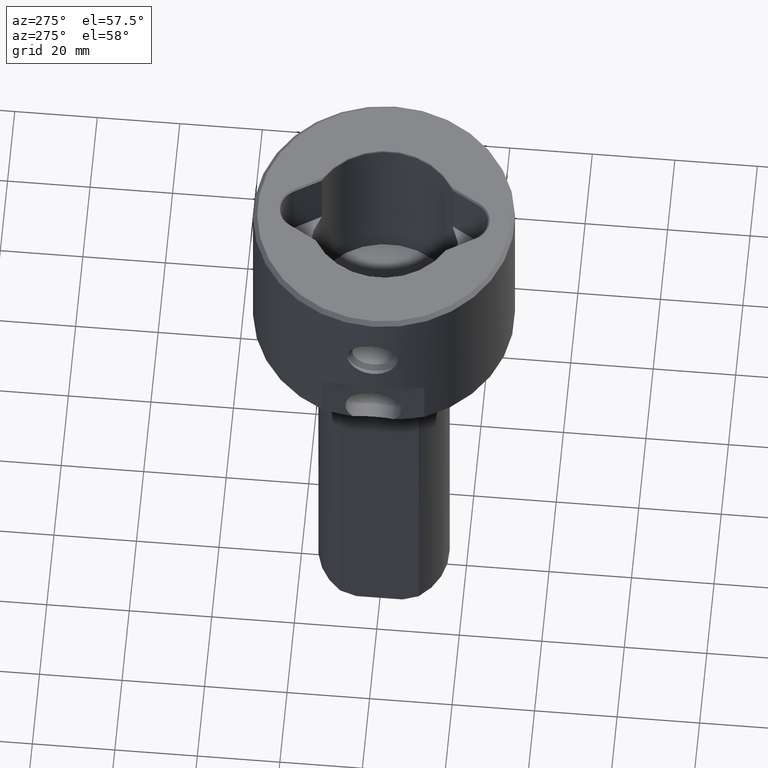
[diagram: clean part render]
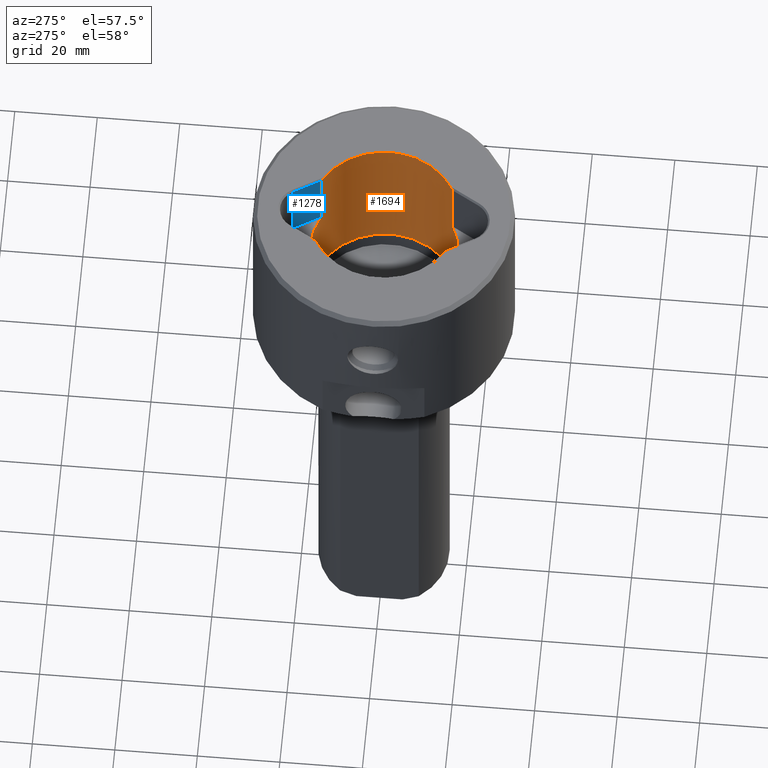
[diagram: same view with the hole feature highlighted: cylindrical wall and planar end face, labeled with their STEP entity ids]
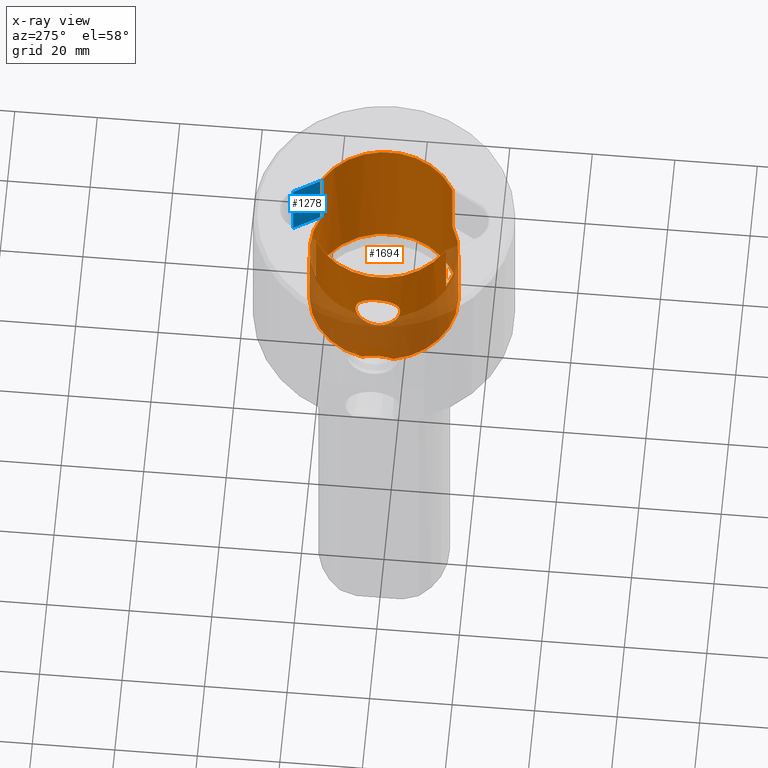
[diagram: x-ray of the same camera — body ghosted, the hole faces saturated]
A machine part, auxiliary view. The highlighted faces form one hole feature of diameter 36 mm: the cylindrical wall (entity #1694, orange) and its adjacent planar end face (entity #1278, blue) — they share a circular edge in the B-rep.
The next image is the same camera in x-ray (body ghosted, the hole faces saturated) — the bore reads through the body.
Wall:
#1 = EDGE_CURVE ( 'NONE', #38, #247, #1326, .T. ) ;
#32 = CARTESIAN_POINT ( 'NONE',  ( -17.33444449850987468, 4.849597146021736194, -13.58760967219940419 ) ) ;
#33 = CARTESIAN_POINT ( 'NONE',  ( -17.92217169488079520, -1.703057053352808436, -35.79328652054415727 ) ) ;
#34 = AXIS2_PLACEMENT_3D ( 'NONE', #1372, #1377, #1232 ) ;
#38 = VERTEX_POINT ( 'NONE', #439 ) ;
#42 = CARTESIAN_POINT ( 'NONE',  ( -17.98945931436183443, 0.7070667508926807843, -10.53615283552612247 ) ) ;
#52 = CARTESIAN_POINT ( 'NONE',  ( -17.47887003101556758, 4.304559398449096186, -12.66328018524360211 ) ) ;
#58 = CARTESIAN_POINT ( 'NONE',  ( -17.16629680184335882, -5.414633331170481512, -16.04687856848313743 ) ) ;
#61 = CARTESIAN_POINT ( 'NONE',  ( -17.60305317949132942, -3.759324242467012134, -37.00000000000000711 ) ) ;
#65 = CARTESIAN_POINT ( 'NONE',  ( -17.21206762638222187, -5.275392231855662750, -17.48398397906288793 ) ) ;
#69 = CARTESIAN_POINT ( 'NONE',  ( -17.47974789443492583, 4.301005571702951613, -19.44001572686741142 ) ) ;
#71 = EDGE_CURVE ( 'NONE', #1369, #1028, #706, .T. ) ;
#75 = CARTESIAN_POINT ( 'NONE',  ( -17.69561988426344357, -3.309476676868710054, -20.45771288999422666 ) ) ;
#80 = EDGE_LOOP ( 'NONE', ( #690, #528 ) ) ;
#81 = CARTESIAN_POINT ( 'NONE',  ( -17.19905880711430513, 5.309649343358159967, -17.12577978772318232 ) ) ;
#91 = EDGE_CURVE ( 'NONE', #1241, #1098, #1565, .T. ) ;
#105 = CARTESIAN_POINT ( 'NONE',  ( -17.37937906097737795, -4.690144412608011848, -13.25752381270908309 ) ) ;
#107 = CARTESIAN_POINT ( 'NONE',  ( -8.847642454325306716, 15.67543374201876816, -0.2500000000000483502 ) ) ;
#109 = CARTESIAN_POINT ( 'NONE',  ( -17.77055950704083287, -2.868641928640806693, -11.34197232911332520 ) ) ;
#113 = EDGE_CURVE ( 'NONE', #1098, #1369, #285, .T. ) ;
#141 = CARTESIAN_POINT ( 'NONE',  ( -8.847642454325306716, 15.67543374201876816, -0.2500000000000483502 ) ) ;
#156 = CARTESIAN_POINT ( 'NONE',  ( 8.847642454325278294, 15.67543374201878237, -0.2500000000000487943 ) ) ;
#157 = CARTESIAN_POINT ( 'NONE',  ( -17.80439140890812766, -2.650973005324353426, -36.20670298402330900 ) ) ;
#162 = VERTEX_POINT ( 'NONE', #1696 ) ;
#180 = FACE_OUTER_BOUND ( 'NONE', #80, .T. ) ;
#191 = CARTESIAN_POINT ( 'NONE',  ( -17.99999986416079167, -0.002211382250003467165, -21.59999958692054634 ) ) ;
#194 = CARTESIAN_POINT ( 'NONE',  ( -17.23905157090450757, 5.178329936928975918, -17.65526272629363902 ) ) ;
#201 = CARTESIAN_POINT ( 'NONE',  ( -17.20985962191030083, 5.274663257304567310, -17.30327748074478933 ) ) ;
#202 = VERTEX_POINT ( 'NONE', #883 ) ;
#204 = CARTESIAN_POINT ( 'NONE',  ( -17.60305317949132942, 3.759324242467013022, -37.00000000000000711 ) ) ;
#206 = EDGE_CURVE ( 'NONE', #202, #1204, #1202, .T. ) ;
#207 = DIRECTION ( 'NONE',  ( -0.0000000000000000000, -0.0000000000000000000, 1.000000000000000000 ) ) ;
#208 = ORIENTED_EDGE ( 'NONE', *, *, #91, .T. ) ;
#209 = CARTESIAN_POINT ( 'NONE',  ( -17.16632306384883933, 5.414550071365632711, -16.41177549497760424 ) ) ;
#214 = CARTESIAN_POINT ( 'NONE',  ( -17.84067216721243199, -2.413153824941026482, -21.02770395027074812 ) ) ;
#217 = CARTESIAN_POINT ( 'NONE',  ( 0.0000000000000000000, 0.0000000000000000000, -0.2500000000000487943 ) ) ;
#220 = CARTESIAN_POINT ( 'NONE',  ( -17.64283033049639116, -3.577175011701300811, -11.86825128641973492 ) ) ;
#227 = CARTESIAN_POINT ( 'NONE',  ( -17.22305040738715221, -5.231591477147992997, -14.61646883288685572 ) ) ;
#230 = ORIENTED_EDGE ( 'NONE', *, *, #1172, .T. ) ;
#247 = VERTEX_POINT ( 'NONE', #1721 ) ;
#249 = VERTEX_POINT ( 'NONE', #508 ) ;
#260 = CARTESIAN_POINT ( 'NONE',  ( 0.0000000000000000000, 0.0000000000000000000, -0.2500000000000487943 ) ) ;
#266 =( BOUNDED_CURVE ( )  B_SPLINE_CURVE ( 3, ( #1053, #651, #894, #107 ),
 .UNSPECIFIED., .F., .F. ) 
 B_SPLINE_CURVE_WITH_KNOTS ( ( 4, 4 ),
 ( 5.733670025123927871, 5.749840058275134780 ),
 .UNSPECIFIED. ) 
 CURVE ( )  GEOMETRIC_REPRESENTATION_ITEM ( )  RATIONAL_B_SPLINE_CURVE ( ( 1.000000000000000000, 0.9999782109543489117, 0.9999782109543489117, 1.000000000000000000 ) ) 
 REPRESENTATION_ITEM ( '' )  );
#267 = VECTOR ( 'NONE', #1361, 1000.000000000000000 ) ;
#272 = ORIENTED_EDGE ( 'NONE', *, *, #635, .T. ) ;
#285 =( BOUNDED_CURVE ( )  B_SPLINE_CURVE ( 3, ( #349, #1287, #470, #996 ),
 .UNSPECIFIED., .F., .F. ) 
 B_SPLINE_CURVE_WITH_KNOTS ( ( 4, 4 ),
 ( 5.733670025123926095, 5.749840058275133892 ),
 .UNSPECIFIED. ) 
 CURVE ( )  GEOMETRIC_REPRESENTATION_ITEM ( )  RATIONAL_B_SPLINE_CURVE ( ( 1.000000000000000000, 0.9999782109543489117, 0.9999782109543489117, 1.000000000000000000 ) ) 
 REPRESENTATION_ITEM ( '' )  );
#307 = AXIS2_PLACEMENT_3D ( 'NONE', #494, #1432, #339 ) ;
#310 = EDGE_LOOP ( 'NONE', ( #230 ) ) ;
#315 = AXIS2_PLACEMENT_3D ( 'NONE', #260, #394, #500 ) ;
#318 = AXIS2_PLACEMENT_3D ( 'NONE', #1632, #1499, #1089 ) ;
#321 = CARTESIAN_POINT ( 'NONE',  ( -17.16622542328070367, -5.414859626381428370, -15.68388732457633772 ) ) ;
#330 = CARTESIAN_POINT ( 'NONE',  ( -18.00008724370458069, 0.7090323551594571727, -21.60012928040771030 ) ) ;
#333 = CARTESIAN_POINT ( 'NONE',  ( -17.99995617438889539, -0.3578332509547337836, -21.59993474017696258 ) ) ;
#338 = CARTESIAN_POINT ( 'NONE',  ( -17.93128400984321402, -1.571322296138180530, -21.35804598344994787 ) ) ;
#339 = DIRECTION ( 'NONE',  ( 1.000000000000000000, 0.0000000000000000000, 0.0000000000000000000 ) ) ;
#345 = CARTESIAN_POINT ( 'NONE',  ( -17.47917136367497903, -4.303334574344775731, -19.43663767568693146 ) ) ;
#349 = CARTESIAN_POINT ( 'NONE',  ( 8.593024545601693376, -15.81644489633138662, -0.4000000000568444403 ) ) ;
#352 = CARTESIAN_POINT ( 'NONE',  ( -17.58834994565294707, -3.827524812362408380, -12.12432798165620440 ) ) ;
#357 = CARTESIAN_POINT ( 'NONE',  ( -17.24674715082999654, -5.152714468620291477, -14.35346335997000544 ) ) ;
#358 = CARTESIAN_POINT ( 'NONE',  ( 0.0000000000000000000, 0.0000000000000000000, -37.00000000000000711 ) ) ;
#384 = CIRCLE ( 'NONE', #307, 18.00000000000000000 ) ;
#394 = DIRECTION ( 'NONE',  ( 0.0000000000000000000, 0.0000000000000000000, 1.000000000000000000 ) ) ;
#412 = CARTESIAN_POINT ( 'NONE',  ( 8.847642454325288952, -15.67543374201877526, -0.2500000000000489053 ) ) ;
#419 = CARTESIAN_POINT ( 'NONE',  ( -17.78150625307939947, -2.799912055436811098, -36.29042169403708584 ) ) ;
#426 = CARTESIAN_POINT ( 'NONE',  ( -17.31300508371691294, 4.925587632132214289, -13.75280217146822004 ) ) ;
#432 = ORIENTED_EDGE ( 'NONE', *, *, #910, .T. ) ;
#437 = CARTESIAN_POINT ( 'NONE',  ( -18.00000000000000000, 0.3556291838948769102, -10.50013608482123040 ) ) ;
#439 = CARTESIAN_POINT ( 'NONE',  ( -8.593024545601714692, -15.81644489633136885, -16.60000000005684484 ) ) ;
#441 = CARTESIAN_POINT ( 'NONE',  ( -17.80190843968010483, 2.746618726658378584, -11.21633630150308569 ) ) ;
#448 = CARTESIAN_POINT ( 'NONE',  ( -17.42880577385396279, 4.498525235816154044, -12.96221788558966281 ) ) ;
#454 = CARTESIAN_POINT ( 'NONE',  ( -17.33478329553541641, -4.848386105445475103, -18.51072659874246895 ) ) ;
#455 = CARTESIAN_POINT ( 'NONE',  ( -17.95071010941065381, -1.373477697796763097, -35.69868259844840708 ) ) ;
#457 = CARTESIAN_POINT ( 'NONE',  ( -17.96902667239213613, -1.055500093254363003, -21.49239980530114380 ) ) ;
#458 = CARTESIAN_POINT ( 'NONE',  ( -17.87993864142112344, 2.075522627921872587, -21.17101512472919822 ) ) ;
#461 = CARTESIAN_POINT ( 'NONE',  ( -17.86759765141595580, -2.185203552087382040, -35.98168217810304270 ) ) ;
#466 = CARTESIAN_POINT ( 'NONE',  ( -17.16629657483088778, 5.414634050880006377, -16.04875306761608655 ) ) ;
#470 = CARTESIAN_POINT ( 'NONE',  ( 8.763150772731373550, -15.72312315217550349, -0.2993272375904807991 ) ) ;
#472 = CARTESIAN_POINT ( 'NONE',  ( -17.32406215473042366, -4.886396469693902844, -18.42800409082359891 ) ) ;
#478 = CARTESIAN_POINT ( 'NONE',  ( -17.74578048550582920, -3.014510733144005084, -11.44153248153536850 ) ) ;
#492 = CARTESIAN_POINT ( 'NONE',  ( -17.69622244243582543, -3.306248342150401420, -11.64065278637945333 ) ) ;
#494 = CARTESIAN_POINT ( 'NONE',  ( 0.0000000000000000000, 0.0000000000000000000, -16.60000000005684484 ) ) ;
#498 = CARTESIAN_POINT ( 'NONE',  ( -17.26431201936370741, -5.093479213470270217, -14.17889620802654704 ) ) ;
#500 = DIRECTION ( 'NONE',  ( 1.000000000000000000, 0.0000000000000000000, 0.0000000000000000000 ) ) ;
#508 = CARTESIAN_POINT ( 'NONE',  ( -17.60305317949132942, 3.759324242467013022, -37.00000000000000711 ) ) ;
#511 = EDGE_LOOP ( 'NONE', ( #432, #272, #1433, #1509, #208, #583, #840, #1436, #1161, #1610, #801, #1159 ) ) ;
#512 = EDGE_CURVE ( 'NONE', #553, #249, #824, .T. ) ;
#528 = ORIENTED_EDGE ( 'NONE', *, *, #512, .T. ) ;
#536 = B_SPLINE_CURVE_WITH_KNOTS ( 'NONE', 3,
 ( #1380, #437, #42, #1242, #958, #563, #569, #1513, #695, #1518, #441, #699, #1659, #838, #52, #448, #574, #1525, #1637, #811, #32, #1228, #426, #1359, #1683, #1535, #865, #466, #209, #1673, #81, #201, #716, #194, #599, #858, #1134, #576, #993, #1252, #974, #850, #1530, #69, #1396, #1402, #720, #999, #1679, #989, #1270, #458, #595, #330, #191, #333, #1662, #457, #1127, #1257, #338, #1411, #710, #1550, #214, #729, #1264, #75, #1141, #1665, #1399, #345, #1116, #589, #1388, #1543, #1275, #454, #472, #705, #581, #846, #65, #842, #58, #321, #983, #1123, #1017, #227, #893, #357, #744, #498, #1699, #1570, #1438, #608, #105, #622, #757, #1560, #352, #220, #492, #478, #109, #736, #1150, #1581, #1007, #764, #614, #1717, #1299 ),
 .UNSPECIFIED., .T., .F.,
 ( 4, 3, 3, 3, 3, 3, 3, 3, 3, 3, 3, 3, 3, 3, 3, 3, 3, 3, 3, 3, 3, 3, 3, 3, 3, 3, 3, 3, 3, 3, 3, 3, 3, 3, 3, 3, 3, 3, 4 ),
 ( 0.0000000000000000000, 0.02631578947368420907, 0.05263157894736841813, 0.07894736842105262720, 0.1052631578947368363, 0.1315789473684210453, 0.1578947368421052544, 0.1842105263157894635, 0.2105263157894736725, 0.2368421052631578816, 0.2631578947368420907, 0.2894736842105263275, 0.3157894736842105088, 0.3421052631578947456, 0.3684210526315789269, 0.3947368421052631637, 0.4210526315789473450, 0.4473684210526315819, 0.4736842105263157632, 0.5000000000000000000, 0.5263157894736841813, 0.5526315789473684736, 0.5789473684210526550, 0.6052631578947368363, 0.6315789473684210176, 0.6578947368421053099, 0.6842105263157894912, 0.7105263157894736725, 0.7368421052631578538, 0.7631578947368421462, 0.7894736842105263275, 0.8157894736842105088, 0.8421052631578946901, 0.8684210526315789824, 0.8947368421052631637, 0.9210526315789473450, 0.9473684210526315264, 0.9736842105263158187, 1.000000000000000000 ),
 .UNSPECIFIED. ) ;
#550 = CARTESIAN_POINT ( 'NONE',  ( -17.99995068983495017, -0.3481907699299508496, -35.53755956262458682 ) ) ;
#553 = VERTEX_POINT ( 'NONE', #61 ) ;
#563 = CARTESIAN_POINT ( 'NONE',  ( -17.94635482207223731, 1.399204737499998963, -10.68891772316141875 ) ) ;
#569 = CARTESIAN_POINT ( 'NONE',  ( -17.93139204589926550, 1.570088945334184638, -10.74280671461409042 ) ) ;
#574 = CARTESIAN_POINT ( 'NONE',  ( -17.40377364527315862, 4.595508154499682085, -13.11168673576269050 ) ) ;
#576 = CARTESIAN_POINT ( 'NONE',  ( -17.27356385820863238, 5.062115865894688760, -18.00499036647170570 ) ) ;
#581 = CARTESIAN_POINT ( 'NONE',  ( -17.30310831216911538, -4.960218887504337815, -18.26240026437089625 ) ) ;
#583 = ORIENTED_EDGE ( 'NONE', *, *, #113, .T. ) ;
#589 = CARTESIAN_POINT ( 'NONE',  ( -17.40410430007927189, -4.594255491026685512, -18.98742664093746768 ) ) ;
#591 = CARTESIAN_POINT ( 'NONE',  ( -17.60305317949132942, -3.759324242467012134, -37.00000000000000711 ) ) ;
#595 = CARTESIAN_POINT ( 'NONE',  ( -17.95795583747988644, 1.403430375233156724, -21.45713453109459934 ) ) ;
#597 = DIRECTION ( 'NONE',  ( -0.0000000000000000000, -0.0000000000000000000, 1.000000000000000000 ) ) ;
#599 = CARTESIAN_POINT ( 'NONE',  ( -17.24694866929598547, 5.152039899776191589, -17.74300819263965323 ) ) ;
#608 = CARTESIAN_POINT ( 'NONE',  ( -17.33314558854568688, -4.856214130550744912, -13.57740885259132391 ) ) ;
#614 = CARTESIAN_POINT ( 'NONE',  ( -17.95787453125354460, -1.404561119891114762, -10.64292990348563706 ) ) ;
#622 = CARTESIAN_POINT ( 'NONE',  ( -17.42950173482630305, -4.495827985553592754, -12.95854510546628013 ) ) ;
#635 = EDGE_CURVE ( 'NONE', #1414, #247, #1341, .T. ) ;
#651 = CARTESIAN_POINT ( 'NONE',  ( -8.678276287156156954, 15.77012789446816399, -0.3493283270854335432 ) ) ;
#679 = CARTESIAN_POINT ( 'NONE',  ( -17.95147164692240338, 1.363851028667707466, -35.69615692656522299 ) ) ;
#690 = ORIENTED_EDGE ( 'NONE', *, *, #723, .T. ) ;
#695 = CARTESIAN_POINT ( 'NONE',  ( -17.89895385736730304, 1.911986393678057228, -10.86014611343331815 ) ) ;
#699 = CARTESIAN_POINT ( 'NONE',  ( -17.69685802120729434, 3.329435415970922296, -11.61428344208668584 ) ) ;
#705 = CARTESIAN_POINT ( 'NONE',  ( -17.31334101392543445, -4.924406833942331474, -18.34528158290472888 ) ) ;
#706 = CIRCLE ( 'NONE', #1515, 18.00000000000000000 ) ;
#710 = CARTESIAN_POINT ( 'NONE',  ( -17.89889519390602146, -1.912530922040713843, -21.24113233622126984 ) ) ;
#714 = CARTESIAN_POINT ( 'NONE',  ( -17.99015156974784446, 0.6854709447934945743, -35.56902005296069547 ) ) ;
#715 = CARTESIAN_POINT ( 'NONE',  ( -8.847642454325315597, -15.67543374201876105, -0.2500000000000496825 ) ) ;
#716 = CARTESIAN_POINT ( 'NONE',  ( -17.22325737412154467, 5.230910011234544577, -17.47977179360161060 ) ) ;
#720 = CARTESIAN_POINT ( 'NONE',  ( -17.64277977288003640, 3.577402560891882910, -20.23193519118693828 ) ) ;
#723 = EDGE_CURVE ( 'NONE', #249, #553, #1109, .T. ) ;
#729 = CARTESIAN_POINT ( 'NONE',  ( -17.79485885170676340, -2.725912216288564949, -20.85679150196197185 ) ) ;
#736 = CARTESIAN_POINT ( 'NONE',  ( -17.79437340770851961, -2.717572966785108957, -11.24953172549032665 ) ) ;
#739 = EDGE_CURVE ( 'NONE', #1241, #38, #384, .T. ) ;
#741 = CARTESIAN_POINT ( 'NONE',  ( 8.593024545601691599, 15.81644489633137241, -0.4000000000568514347 ) ) ;
#744 = CARTESIAN_POINT ( 'NONE',  ( -17.25524600717043455, -5.124208398123087704, -14.26605147899809545 ) ) ;
#751 = DIRECTION ( 'NONE',  ( 1.000000000000000000, 0.0000000000000000000, 0.0000000000000000000 ) ) ;
#757 = CARTESIAN_POINT ( 'NONE',  ( -17.47962440867523171, -4.301511558499172772, -12.65956639822347718 ) ) ;
#764 = CARTESIAN_POINT ( 'NONE',  ( -17.87978627913467733, -2.076834758103604628, -10.92960615259167412 ) ) ;
#801 = ORIENTED_EDGE ( 'NONE', *, *, #206, .T. ) ;
#811 = CARTESIAN_POINT ( 'NONE',  ( -17.34551927459956033, 4.809866024490546010, -13.50632372665631209 ) ) ;
#813 = CARTESIAN_POINT ( 'NONE',  ( -17.98964092911268864, -0.6980355721858133577, -35.57067662379813555 ) ) ;
#824 = B_SPLINE_CURVE_WITH_KNOTS ( 'NONE', 3,
 ( #591, #1681, #991, #419, #157, #1267, #461, #33, #455, #813, #550, #1357, #714, #679, #1400, #1085, #1360, #1676, #1498, #204 ),
 .UNSPECIFIED., .F., .F.,
 ( 4, 2, 2, 2, 2, 2, 2, 2, 2, 4 ),
 ( 4.336808689942017736E-19, 0.001032245722602895700, 0.001548368583904342682, 0.002064491445205790098, 0.003096737167808692303, 0.004128982890411594942, 0.005161228613014498881, 0.006193474335617401086, 0.007225720058220303291, 0.008257965780823205496 ),
 .UNSPECIFIED. ) ;
#838 = CARTESIAN_POINT ( 'NONE',  ( -17.53283097734987450, 4.082379076305056920, -12.38530735035858577 ) ) ;
#840 = ORIENTED_EDGE ( 'NONE', *, *, #71, .T. ) ;
#842 = CARTESIAN_POINT ( 'NONE',  ( -17.16643955896867624, -5.414180740748588683, -16.77286105629672974 ) ) ;
#843 = CARTESIAN_POINT ( 'NONE',  ( -18.00000000000000000, 2.204364238465235033E-15, -10.49999995021656041 ) ) ;
#846 = CARTESIAN_POINT ( 'NONE',  ( -17.29299268041501136, -4.995238147987818955, -18.17590956600333740 ) ) ;
#850 = CARTESIAN_POINT ( 'NONE',  ( -17.37956024725014004, 4.689469158980028141, -18.84100969267689507 ) ) ;
#858 = CARTESIAN_POINT ( 'NONE',  ( -17.25544361673636118, 5.123542816546633460, -17.83050281394446657 ) ) ;
#862 = DIRECTION ( 'NONE',  ( 0.0000000000000000000, 0.0000000000000000000, 1.000000000000000000 ) ) ;
#865 = CARTESIAN_POINT ( 'NONE',  ( -17.16624359679498824, 5.414802009908753710, -15.32270821289304408 ) ) ;
#871 = CARTESIAN_POINT ( 'NONE',  ( 8.593024545601693376, -15.81644489633138662, -16.60000000005684484 ) ) ;
#883 = CARTESIAN_POINT ( 'NONE',  ( -8.593024545601718245, 15.81644489633135819, -16.60000000005684484 ) ) ;
#886 = CARTESIAN_POINT ( 'NONE',  ( 8.593024545601693376, -15.81644489633138662, -16.60000000005684484 ) ) ;
#893 = CARTESIAN_POINT ( 'NONE',  ( -17.23884823634904961, -5.179006804796191688, -14.44113185094228768 ) ) ;
#894 = CARTESIAN_POINT ( 'NONE',  ( -8.763150772731389537, 15.72312315217549283, -0.2993272375904793559 ) ) ;
#910 = EDGE_CURVE ( 'NONE', #1575, #1414, #1516, .T. ) ;
#940 = EDGE_CURVE ( 'NONE', #1204, #1575, #266, .T. ) ;
#952 = CARTESIAN_POINT ( 'NONE',  ( 8.593024545601693376, -15.81644489633138662, -0.4000000000568444403 ) ) ;
#958 = CARTESIAN_POINT ( 'NONE',  ( -17.95896603802782465, 1.227064097057561920, -10.64399888573380437 ) ) ;
#961 = FACE_BOUND ( 'NONE', #310, .T. ) ;
#974 = CARTESIAN_POINT ( 'NONE',  ( -17.33333456712267306, 4.855542281510373925, -18.52041391737796516 ) ) ;
#983 = CARTESIAN_POINT ( 'NONE',  ( -17.17729603003632732, -5.380134665842327024, -15.32500184067542826 ) ) ;
#989 = CARTESIAN_POINT ( 'NONE',  ( -17.79536237049869385, 2.722639937976988112, -20.85806089284125164 ) ) ;
#991 = CARTESIAN_POINT ( 'NONE',  ( -17.70959548840644615, -3.233591845447212787, -36.56099884395975153 ) ) ;
#993 = CARTESIAN_POINT ( 'NONE',  ( -17.28334364775323806, 5.028651010224002071, -18.09330325049970156 ) ) ;
#996 = CARTESIAN_POINT ( 'NONE',  ( 8.847642454325288952, -15.67543374201877526, -0.2500000000000489053 ) ) ;
#998 =( BOUNDED_CURVE ( )  B_SPLINE_CURVE ( 3, ( #1288, #1398, #1005, #741 ),
 .UNSPECIFIED., .F., .F. ) 
 B_SPLINE_CURVE_WITH_KNOTS ( ( 4, 4 ),
 ( 0.5333452489044533396, 0.5495152820556601370 ),
 .UNSPECIFIED. ) 
 CURVE ( )  GEOMETRIC_REPRESENTATION_ITEM ( )  RATIONAL_B_SPLINE_CURVE ( ( 1.000000000000000000, 0.9999782109543489117, 0.9999782109543489117, 1.000000000000000000 ) ) 
 REPRESENTATION_ITEM ( '' )  );
#999 = CARTESIAN_POINT ( 'NONE',  ( -17.69617416282950373, 3.306525385965418451, -20.45963701341381480 ) ) ;
#1002 = CYLINDRICAL_SURFACE ( 'NONE', #318, 18.00000000000000000 ) ;
#1005 = CARTESIAN_POINT ( 'NONE',  ( 8.678276287156142743, 15.77012789446817109, -0.3493283270854283251 ) ) ;
#1007 = CARTESIAN_POINT ( 'NONE',  ( -17.86026421610496229, -2.244903167656727483, -11.00127521486818161 ) ) ;
#1011 = CARTESIAN_POINT ( 'NONE',  ( -8.678276287156165836, -15.77012789446816399, -0.3493283270854354861 ) ) ;
#1017 = CARTESIAN_POINT ( 'NONE',  ( -17.20965742494444939, -5.275322577585106920, -14.79283225483289677 ) ) ;
#1024 = CIRCLE ( 'NONE', #34, 18.00000000000000000 ) ;
#1028 = VERTEX_POINT ( 'NONE', #156 ) ;
#1048 = AXIS2_PLACEMENT_3D ( 'NONE', #358, #1293, #751 ) ;
#1053 = CARTESIAN_POINT ( 'NONE',  ( -8.593024545601718245, 15.81644489633135819, -0.4000000000568479375 ) ) ;
#1070 = VECTOR ( 'NONE', #1236, 1000.000000000000000 ) ;
#1085 = CARTESIAN_POINT ( 'NONE',  ( -17.85022776244381859, 2.339380573720948320, -36.04160632180709456 ) ) ;
#1089 = DIRECTION ( 'NONE',  ( 1.000000000000000000, 0.0000000000000000000, 0.0000000000000000000 ) ) ;
#1098 = VERTEX_POINT ( 'NONE', #952 ) ;
#1100 = CARTESIAN_POINT ( 'NONE',  ( -8.593024545601718245, 15.81644489633135819, -0.4000000000568479375 ) ) ;
#1109 = CIRCLE ( 'NONE', #1048, 18.00000000000000000 ) ;
#1116 = CARTESIAN_POINT ( 'NONE',  ( -17.42912665461117427, -4.497281852132715585, -19.13716365252062346 ) ) ;
#1123 = CARTESIAN_POINT ( 'NONE',  ( -17.19887029330840988, -5.310259940337513918, -14.97022211678040726 ) ) ;
#1127 = CARTESIAN_POINT ( 'NONE',  ( -17.95885357221366263, -1.228688811679140569, -21.45656563479980150 ) ) ;
#1134 = CARTESIAN_POINT ( 'NONE',  ( -17.26450373747249500, 5.092829341220661554, -17.91774659020808613 ) ) ;
#1141 = CARTESIAN_POINT ( 'NONE',  ( -17.64236292114188842, -3.579517179887366396, -20.23033971682193766 ) ) ;
#1142 = DIRECTION ( 'NONE',  ( 1.000000000000000000, 0.0000000000000000000, 0.0000000000000000000 ) ) ;
#1147 = EDGE_CURVE ( 'NONE', #202, #1542, #1024, .T. ) ;
#1150 = CARTESIAN_POINT ( 'NONE',  ( -17.81683957297381227, -2.561294132057910122, -11.16421067066637818 ) ) ;
#1154 = CARTESIAN_POINT ( 'NONE',  ( -8.763150772731405524, -15.72312315217548218, -0.2993272375904806881 ) ) ;
#1159 = ORIENTED_EDGE ( 'NONE', *, *, #940, .T. ) ;
#1161 = ORIENTED_EDGE ( 'NONE', *, *, #1624, .F. ) ;
#1172 = EDGE_CURVE ( 'NONE', #1453, #1453, #536, .T. ) ;
#1202 = LINE ( 'NONE', #1701, #1218 ) ;
#1204 = VERTEX_POINT ( 'NONE', #1100 ) ;
#1218 = VECTOR ( 'NONE', #207, 1000.000000000000000 ) ;
#1228 = CARTESIAN_POINT ( 'NONE',  ( -17.32372479111339203, 4.887592389076974797, -13.67020592183381211 ) ) ;
#1232 = DIRECTION ( 'NONE',  ( 1.000000000000000000, -1.776356839400250465E-15, 0.0000000000000000000 ) ) ;
#1236 = DIRECTION ( 'NONE',  ( -0.0000000000000000000, -0.0000000000000000000, 1.000000000000000000 ) ) ;
#1241 = VERTEX_POINT ( 'NONE', #886 ) ;
#1242 = CARTESIAN_POINT ( 'NONE',  ( -17.96913046347249221, 1.053731648335934912, -10.60805020233124196 ) ) ;
#1252 = CARTESIAN_POINT ( 'NONE',  ( -17.29334183162712435, 4.994029264481277153, -18.17872538387535641 ) ) ;
#1257 = CARTESIAN_POINT ( 'NONE',  ( -17.94623997763364898, -1.400650940712579562, -21.41178102751606716 ) ) ;
#1264 = CARTESIAN_POINT ( 'NONE',  ( -17.74523936798510348, -3.017694446578637280, -20.65725219597809925 ) ) ;
#1267 = CARTESIAN_POINT ( 'NONE',  ( -17.84739193359810017, -2.344058976454685084, -36.05248565366802893 ) ) ;
#1270 = CARTESIAN_POINT ( 'NONE',  ( -17.84093004339174016, 2.411568754266230297, -21.02795542154649766 ) ) ;
#1275 = CARTESIAN_POINT ( 'NONE',  ( -17.34585835498481288, -4.808643124731013074, -18.59214010630679681 ) ) ;
#1287 = CARTESIAN_POINT ( 'NONE',  ( 8.678276287156130309, -15.77012789446817820, -0.3493283270854405931 ) ) ;
#1288 = CARTESIAN_POINT ( 'NONE',  ( 8.847642454325278294, 15.67543374201878237, -0.2500000000000487943 ) ) ;
#1293 = DIRECTION ( 'NONE',  ( -0.0000000000000000000, -0.0000000000000000000, -1.000000000000000000 ) ) ;
#1299 = CARTESIAN_POINT ( 'NONE',  ( -18.00000000000000000, 2.204364238465235033E-15, -10.49999995021656041 ) ) ;
#1326 = LINE ( 'NONE', #1528, #1070 ) ;
#1341 =( BOUNDED_CURVE ( )  B_SPLINE_CURVE ( 3, ( #1415, #1154, #1011, #1557 ),
 .UNSPECIFIED., .F., .T. ) 
 B_SPLINE_CURVE_WITH_KNOTS ( ( 4, 4 ),
 ( 0.5333452489044496758, 0.5495152820556575834 ),
 .UNSPECIFIED. ) 
 CURVE ( )  GEOMETRIC_REPRESENTATION_ITEM ( )  RATIONAL_B_SPLINE_CURVE ( ( 1.000000000000000000, 0.9999782109543489117, 0.9999782109543489117, 1.000000000000000000 ) ) 
 REPRESENTATION_ITEM ( '' )  );
#1357 = CARTESIAN_POINT ( 'NONE',  ( -18.00004894649460851, 0.3430737130011207725, -35.53724161417546412 ) ) ;
#1359 = CARTESIAN_POINT ( 'NONE',  ( -17.30277622210832433, 4.961377068239486654, -13.83554903340061060 ) ) ;
#1360 = CARTESIAN_POINT ( 'NONE',  ( -17.80702508212396751, 2.645325197156155550, -36.19455290003862302 ) ) ;
#1361 = DIRECTION ( 'NONE',  ( -0.0000000000000000000, -0.0000000000000000000, 1.000000000000000000 ) ) ;
#1369 = VERTEX_POINT ( 'NONE', #412 ) ;
#1372 = CARTESIAN_POINT ( 'NONE',  ( 0.0000000000000000000, 0.0000000000000000000, -16.60000000005684484 ) ) ;
#1377 = DIRECTION ( 'NONE',  ( -0.0000000000000000000, -0.0000000000000000000, -1.000000000000000000 ) ) ;
#1380 = CARTESIAN_POINT ( 'NONE',  ( -18.00000000000000000, 2.204364238465235033E-15, -10.49999995021656041 ) ) ;
#1386 = LINE ( 'NONE', #1494, #267 ) ;
#1388 = CARTESIAN_POINT ( 'NONE',  ( -17.38003936146367678, -4.684189885439169032, -18.83245362793611477 ) ) ;
#1396 = CARTESIAN_POINT ( 'NONE',  ( -17.53395048439865889, 4.077507523926422905, -19.71955178170685841 ) ) ;
#1398 = CARTESIAN_POINT ( 'NONE',  ( 8.763150772731371774, 15.72312315217549994, -0.2993272375904776350 ) ) ;
#1399 = CARTESIAN_POINT ( 'NONE',  ( -17.53309746227581201, -4.081226048717265797, -19.71516769318045803 ) ) ;
#1400 = CARTESIAN_POINT ( 'NONE',  ( -17.92237478342964607, 1.700533669795517788, -35.79262463074479683 ) ) ;
#1402 = CARTESIAN_POINT ( 'NONE',  ( -17.58836512863934587, 3.827455042409153130, -19.97574348644689834 ) ) ;
#1411 = CARTESIAN_POINT ( 'NONE',  ( -17.91632804205277907, -1.741993651563781720, -21.30431093938383214 ) ) ;
#1414 = VERTEX_POINT ( 'NONE', #715 ) ;
#1415 = CARTESIAN_POINT ( 'NONE',  ( -8.847642454325315597, -15.67543374201876105, -0.2500000000000496825 ) ) ;
#1432 = DIRECTION ( 'NONE',  ( -0.0000000000000000000, -0.0000000000000000000, -1.000000000000000000 ) ) ;
#1433 = ORIENTED_EDGE ( 'NONE', *, *, #1, .F. ) ;
#1436 = ORIENTED_EDGE ( 'NONE', *, *, #1460, .T. ) ;
#1438 = CARTESIAN_POINT ( 'NONE',  ( -17.29317359418605093, -4.994611800865631501, -13.91820022511300614 ) ) ;
#1453 = VERTEX_POINT ( 'NONE', #843 ) ;
#1460 = EDGE_CURVE ( 'NONE', #1028, #162, #998, .T. ) ;
#1494 = CARTESIAN_POINT ( 'NONE',  ( 8.593024545601691599, 15.81644489633137241, -16.60000000005684484 ) ) ;
#1498 = CARTESIAN_POINT ( 'NONE',  ( -17.65730750918219982, 3.505278092369769727, -36.76706296322782208 ) ) ;
#1499 = DIRECTION ( 'NONE',  ( -0.0000000000000000000, -0.0000000000000000000, 1.000000000000000000 ) ) ;
#1509 = ORIENTED_EDGE ( 'NONE', *, *, #739, .F. ) ;
#1513 = CARTESIAN_POINT ( 'NONE',  ( -17.91642926972629013, 1.740973153168370313, -10.79669570606676210 ) ) ;
#1515 = AXIS2_PLACEMENT_3D ( 'NONE', #217, #862, #1142 ) ;
#1516 = CIRCLE ( 'NONE', #315, 18.00000000000000000 ) ;
#1518 = CARTESIAN_POINT ( 'NONE',  ( -17.87954477382986695, 2.078912860274121588, -10.93138415104727024 ) ) ;
#1525 = CARTESIAN_POINT ( 'NONE',  ( -17.37970270776983384, 4.685438517977936534, -13.26639680230098151 ) ) ;
#1528 = CARTESIAN_POINT ( 'NONE',  ( -8.593024545601714692, -15.81644489633136885, -16.60000000005684484 ) ) ;
#1530 = CARTESIAN_POINT ( 'NONE',  ( -17.42965407084253115, 4.495237365341489877, -19.14051270977215324 ) ) ;
#1535 = CARTESIAN_POINT ( 'NONE',  ( -17.21175824115670849, 5.276393863900830539, -14.61293797989393539 ) ) ;
#1542 = VERTEX_POINT ( 'NONE', #1601 ) ;
#1543 = CARTESIAN_POINT ( 'NONE',  ( -17.35725202381110321, -4.767158711633731727, -18.67224461351656828 ) ) ;
#1550 = CARTESIAN_POINT ( 'NONE',  ( -17.87948751834149164, -2.079405223007484871, -21.16998954090442808 ) ) ;
#1557 = CARTESIAN_POINT ( 'NONE',  ( -8.593024545601714692, -15.81644489633136885, -0.4000000000568514347 ) ) ;
#1560 = CARTESIAN_POINT ( 'NONE',  ( -17.53386956080950299, -4.077874613023515948, -12.38040467689267565 ) ) ;
#1565 = LINE ( 'NONE', #871, #1584 ) ;
#1570 = CARTESIAN_POINT ( 'NONE',  ( -17.28318059559613928, -5.029211218444353371, -14.00339806824342936 ) ) ;
#1575 = VERTEX_POINT ( 'NONE', #141 ) ;
#1581 = CARTESIAN_POINT ( 'NONE',  ( -17.83930573823910493, -2.405015297330711288, -11.07888961584242971 ) ) ;
#1584 = VECTOR ( 'NONE', #597, 1000.000000000000000 ) ;
#1601 = CARTESIAN_POINT ( 'NONE',  ( 8.593024545601691599, 15.81644489633137241, -16.60000000005684484 ) ) ;
#1610 = ORIENTED_EDGE ( 'NONE', *, *, #1147, .F. ) ;
#1624 = EDGE_CURVE ( 'NONE', #1542, #162, #1386, .T. ) ;
#1628 = FACE_OUTER_BOUND ( 'NONE', #511, .T. ) ;
#1632 = CARTESIAN_POINT ( 'NONE',  ( 0.0000000000000000000, 0.0000000000000000000, -42.00000000000000000 ) ) ;
#1637 = CARTESIAN_POINT ( 'NONE',  ( -17.35691375232298483, 4.768390188986343148, -13.42634808520453582 ) ) ;
#1659 = CARTESIAN_POINT ( 'NONE',  ( -17.58750665863567875, 3.831397856193678564, -12.12829938093461912 ) ) ;
#1662 = CARTESIAN_POINT ( 'NONE',  ( -17.98937287274908670, -0.7091226564048083159, -21.56406814630382840 ) ) ;
#1665 = CARTESIAN_POINT ( 'NONE',  ( -17.58773019170885021, -3.830371614302316097, -19.97275370500119962 ) ) ;
#1673 = CARTESIAN_POINT ( 'NONE',  ( -17.17745717752231016, 5.379621515465345283, -16.77078440167997186 ) ) ;
#1676 = CARTESIAN_POINT ( 'NONE',  ( -17.71025414008666132, 3.230291932263125165, -36.55837356428509111 ) ) ;
#1679 = CARTESIAN_POINT ( 'NONE',  ( -17.74576826666410057, 3.014582661971203059, -20.65884895312753144 ) ) ;
#1681 = CARTESIAN_POINT ( 'NONE',  ( -17.65730023423600059, -3.505312157339013357, -36.76709419768261000 ) ) ;
#1683 = CARTESIAN_POINT ( 'NONE',  ( -17.29266311311370075, 4.996378934424080320, -13.92192558301098160 ) ) ;
#1694 = ADVANCED_FACE ( 'NONE', ( #961, #1628, #180 ), #1002, .F. ) ;
#1696 = CARTESIAN_POINT ( 'NONE',  ( 8.593024545601691599, 15.81644489633137241, -0.4000000000568514347 ) ) ;
#1699 = CARTESIAN_POINT ( 'NONE',  ( -17.27337803155698026, -5.062750028817452730, -14.09174093705500042 ) ) ;
#1701 = CARTESIAN_POINT ( 'NONE',  ( -8.593024545601718245, 15.81644489633135819, -16.60000000005684484 ) ) ;
#1717 = CARTESIAN_POINT ( 'NONE',  ( -18.00000000000000000, -0.7108534035092006764, -10.49972783602726878 ) ) ;
#1721 = CARTESIAN_POINT ( 'NONE',  ( -8.593024545601714692, -15.81644489633136885, -0.4000000000568514347 ) ) ;
End face:
#12 = CARTESIAN_POINT ( 'NONE',  ( 8.593024545601691599, 15.81644489633137241, -16.60000000005684484 ) ) ;
#63 = EDGE_CURVE ( 'NONE', #162, #1120, #1367, .T. ) ;
#83 = ORIENTED_EDGE ( 'NONE', *, *, #138, .F. ) ;
#112 = CARTESIAN_POINT ( 'NONE',  ( 8.593024545601691599, 15.81644489633137241, -16.60000000005684484 ) ) ;
#138 = EDGE_CURVE ( 'NONE', #1329, #1120, #1478, .T. ) ;
#162 = VERTEX_POINT ( 'NONE', #1696 ) ;
#267 = VECTOR ( 'NONE', #1361, 1000.000000000000000 ) ;
#274 = CARTESIAN_POINT ( 'NONE',  ( 4.763139720814414169, 22.45000000000001705, -16.60000000005684484 ) ) ;
#281 = VECTOR ( 'NONE', #1013, 1000.000000000000000 ) ;
#442 = VECTOR ( 'NONE', #1356, 1000.000000000000114 ) ;
#524 = PLANE ( 'NONE',  #879 ) ;
#526 = VECTOR ( 'NONE', #1407, 1000.000000000000000 ) ;
#547 = ORIENTED_EDGE ( 'NONE', *, *, #63, .T. ) ;
#586 = CARTESIAN_POINT ( 'NONE',  ( 4.763139720814415057, 22.45000000000001705, -0.4000000000568445513 ) ) ;
#733 = CARTESIAN_POINT ( 'NONE',  ( 4.763139720814414169, 22.45000000000001705, -16.60000000005684484 ) ) ;
#790 = DIRECTION ( 'NONE',  ( 0.8660254037844403729, 0.4999999999999969469, 0.0000000000000000000 ) ) ;
#879 = AXIS2_PLACEMENT_3D ( 'NONE', #112, #790, #1457 ) ;
#924 = EDGE_LOOP ( 'NONE', ( #943, #547, #83, #1488 ) ) ;
#943 = ORIENTED_EDGE ( 'NONE', *, *, #1624, .T. ) ;
#948 = CARTESIAN_POINT ( 'NONE',  ( 4.763139720814414169, 22.45000000000001705, -0.4000000000568514347 ) ) ;
#984 = EDGE_CURVE ( 'NONE', #1542, #1329, #1234, .T. ) ;
#1013 = DIRECTION ( 'NONE',  ( -0.4999999999999969469, 0.8660254037844403729, 0.0000000000000000000 ) ) ;
#1120 = VERTEX_POINT ( 'NONE', #948 ) ;
#1234 = LINE ( 'NONE', #12, #442 ) ;
#1278 = ADVANCED_FACE ( 'NONE', ( #1302 ), #524, .F. ) ;
#1302 = FACE_OUTER_BOUND ( 'NONE', #924, .T. ) ;
#1329 = VERTEX_POINT ( 'NONE', #274 ) ;
#1356 = DIRECTION ( 'NONE',  ( -0.4999999999999968914, 0.8660254037844404840, 0.0000000000000000000 ) ) ;
#1361 = DIRECTION ( 'NONE',  ( -0.0000000000000000000, -0.0000000000000000000, 1.000000000000000000 ) ) ;
#1367 = LINE ( 'NONE', #586, #281 ) ;
#1386 = LINE ( 'NONE', #1494, #267 ) ;
#1407 = DIRECTION ( 'NONE',  ( -0.0000000000000000000, -0.0000000000000000000, 1.000000000000000000 ) ) ;
#1457 = DIRECTION ( 'NONE',  ( -0.4999999999999969469, 0.8660254037844403729, 0.0000000000000000000 ) ) ;
#1478 = LINE ( 'NONE', #733, #526 ) ;
#1488 = ORIENTED_EDGE ( 'NONE', *, *, #984, .F. ) ;
#1494 = CARTESIAN_POINT ( 'NONE',  ( 8.593024545601691599, 15.81644489633137241, -16.60000000005684484 ) ) ;
#1542 = VERTEX_POINT ( 'NONE', #1601 ) ;
#1601 = CARTESIAN_POINT ( 'NONE',  ( 8.593024545601691599, 15.81644489633137241, -16.60000000005684484 ) ) ;
#1624 = EDGE_CURVE ( 'NONE', #1542, #162, #1386, .T. ) ;
#1696 = CARTESIAN_POINT ( 'NONE',  ( 8.593024545601691599, 15.81644489633137241, -0.4000000000568514347 ) ) ;